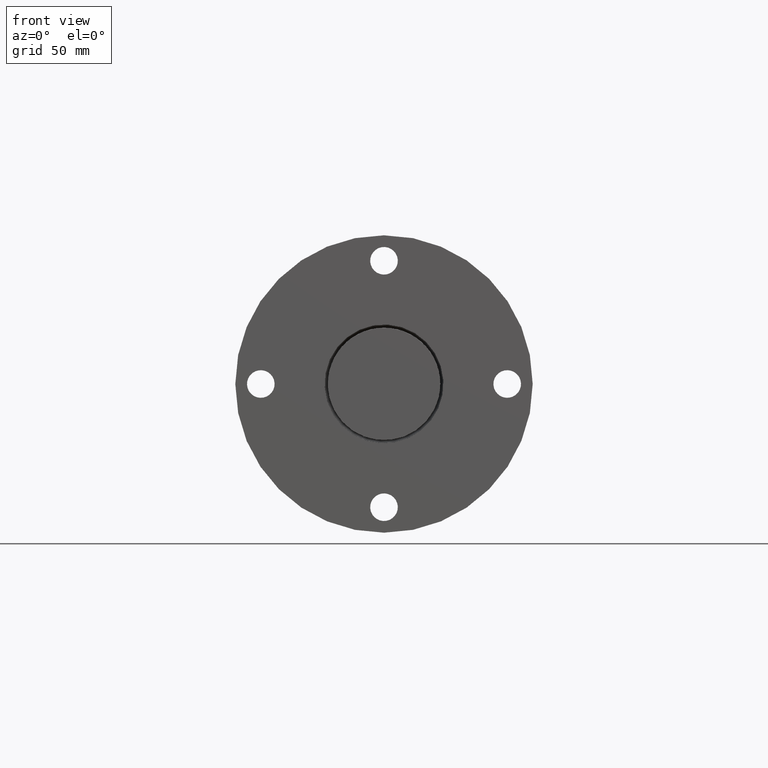
[diagram: clean part render]
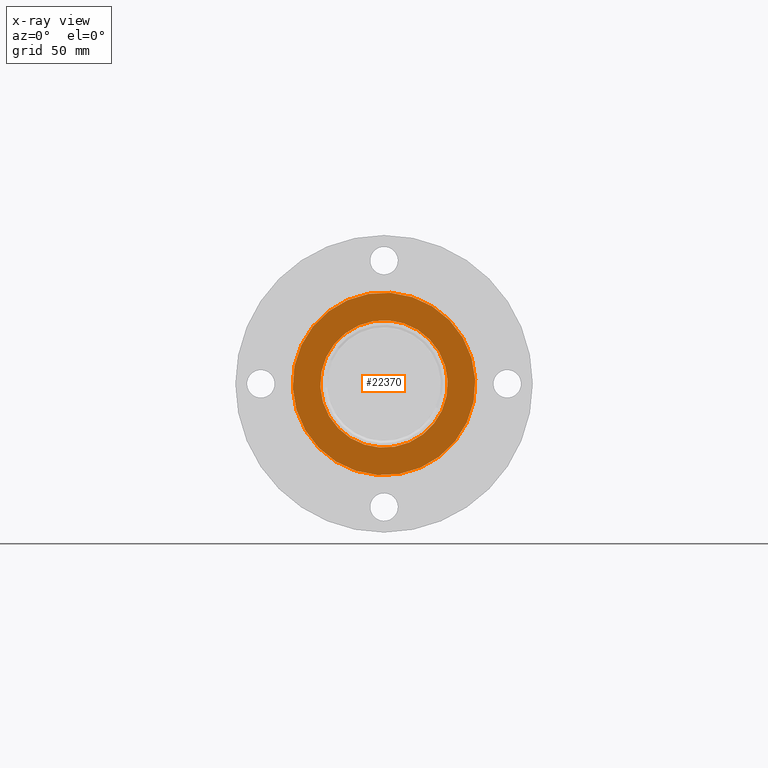
[diagram: x-ray — body ghosted, one internal face saturated and labeled with its STEP entity id]
A machine part, front view, then the same camera in x-ray: the body is ghosted and one INTERNAL B-rep face — a face not visible from any outside direction — is saturated and labeled: STEP entity #22370.
In plain terms, the highlighted planar face has unit normal (-0, -1, 0).
Its self-contained STEP definition (entity closure, byte-faithful):
#2022 = VERTEX_POINT ( 'NONE', #34315 ) ;
#2115 = FACE_OUTER_BOUND ( 'NONE', #5424, .T. ) ;
#3155 = AXIS2_PLACEMENT_3D ( 'NONE', #39777, #3612, #23209 ) ;
#3219 = CIRCLE ( 'NONE', #14047, 30.00000000000000700 ) ;
#3583 = CIRCLE ( 'NONE', #3155, 30.00000000000000700 ) ;
#3612 = DIRECTION ( 'NONE',  ( 1.634356603239235400E-016, 1.000000000000000000, -2.267131750214072300E-016 ) ) ;
#4490 = AXIS2_PLACEMENT_3D ( 'NONE', #40337, #20737, #24048 ) ;
#5017 = DIRECTION ( 'NONE',  ( 0.7157024642082969700, 0.0000000000000000000, 0.6984053140735481100 ) ) ;
#5271 = DIRECTION ( 'NONE',  ( 1.634356603239235400E-016, 1.000000000000000000, -2.267131750214072300E-016 ) ) ;
#5424 = EDGE_LOOP ( 'NONE', ( #20234, #36786 ) ) ;
#7035 = PLANE ( 'NONE',  #4490 ) ;
#7661 = AXIS2_PLACEMENT_3D ( 'NONE', #34551, #37863, #5017 ) ;
#8730 = DIRECTION ( 'NONE',  ( 0.7157024642082970800, 0.0000000000000000000, 0.6984053140735480000 ) ) ;
#8732 = ORIENTED_EDGE ( 'NONE', *, *, #24395, .T. ) ;
#10482 = EDGE_CURVE ( 'NONE', #2022, #33240, #39357, .T. ) ;
#10854 = FACE_BOUND ( 'NONE', #34078, .T. ) ;
#11774 = ORIENTED_EDGE ( 'NONE', *, *, #19458, .T. ) ;
#14047 = AXIS2_PLACEMENT_3D ( 'NONE', #35382, #5271, #8730 ) ;
#14380 = DIRECTION ( 'NONE',  ( 1.634356603239235400E-016, 1.000000000000000000, -2.267131750214072300E-016 ) ) ;
#15548 = CARTESIAN_POINT ( 'NONE',  ( -21.47107392624839800, 198.4999999999999400, -20.95215942220643500 ) ) ;
#17860 = DIRECTION ( 'NONE',  ( 0.7157024642082969700, 0.0000000000000000000, 0.6984053140735481100 ) ) ;
#19458 = EDGE_CURVE ( 'NONE', #36763, #39315, #3219, .T. ) ;
#20234 = ORIENTED_EDGE ( 'NONE', *, *, #10482, .F. ) ;
#20737 = DIRECTION ( 'NONE',  ( -1.634356603239235900E-016, -1.000000000000000000, 2.267131750214071800E-016 ) ) ;
#21897 = AXIS2_PLACEMENT_3D ( 'NONE', #28057, #14380, #17860 ) ;
#22370 = ADVANCED_FACE ( 'NONE', ( #10854, #2115 ), #7035, .T. ) ;
#23209 = DIRECTION ( 'NONE',  ( 0.7157024642082970800, 0.0000000000000000000, 0.6984053140735480000 ) ) ;
#24048 = DIRECTION ( 'NONE',  ( -0.7157024642082970800, -4.136638137209480600E-017, -0.6984053140735480000 ) ) ;
#24395 = EDGE_CURVE ( 'NONE', #39315, #36763, #3583, .T. ) ;
#27788 = CARTESIAN_POINT ( 'NONE',  ( 21.47107392624942400, 198.4999999999999400, 20.95215942220645600 ) ) ;
#28057 = CARTESIAN_POINT ( 'NONE',  ( 5.112621207458022300E-013, 198.4999999999999700, 1.018875935446651400E-014 ) ) ;
#30386 = EDGE_CURVE ( 'NONE', #33240, #2022, #33141, .T. ) ;
#33141 = CIRCLE ( 'NONE', #7661, 43.00000000000001400 ) ;
#33240 = VERTEX_POINT ( 'NONE', #36381 ) ;
#34078 = EDGE_LOOP ( 'NONE', ( #11774, #8732 ) ) ;
#34315 = CARTESIAN_POINT ( 'NONE',  ( 30.77520596095729400, 198.4999999999999700, 30.03142850516258700 ) ) ;
#34551 = CARTESIAN_POINT ( 'NONE',  ( 5.112621207458022300E-013, 198.4999999999999700, 1.018875935446651400E-014 ) ) ;
#35382 = CARTESIAN_POINT ( 'NONE',  ( 5.112621207458022300E-013, 198.4999999999999400, 1.018875935446651700E-014 ) ) ;
#36381 = CARTESIAN_POINT ( 'NONE',  ( -30.77520596095625600, 198.4999999999999700, -30.03142850516256600 ) ) ;
#36763 = VERTEX_POINT ( 'NONE', #27788 ) ;
#36786 = ORIENTED_EDGE ( 'NONE', *, *, #30386, .F. ) ;
#37863 = DIRECTION ( 'NONE',  ( 1.634356603239235400E-016, 1.000000000000000000, -2.267131750214072300E-016 ) ) ;
#39315 = VERTEX_POINT ( 'NONE', #15548 ) ;
#39357 = CIRCLE ( 'NONE', #21897, 43.00000000000001400 ) ;
#39777 = CARTESIAN_POINT ( 'NONE',  ( 5.112621207458022300E-013, 198.4999999999999400, 1.018875935446651700E-014 ) ) ;
#40337 = CARTESIAN_POINT ( 'NONE',  ( 30.77520596095729000, 198.4999999999999700, 30.03142850516258400 ) ) ;